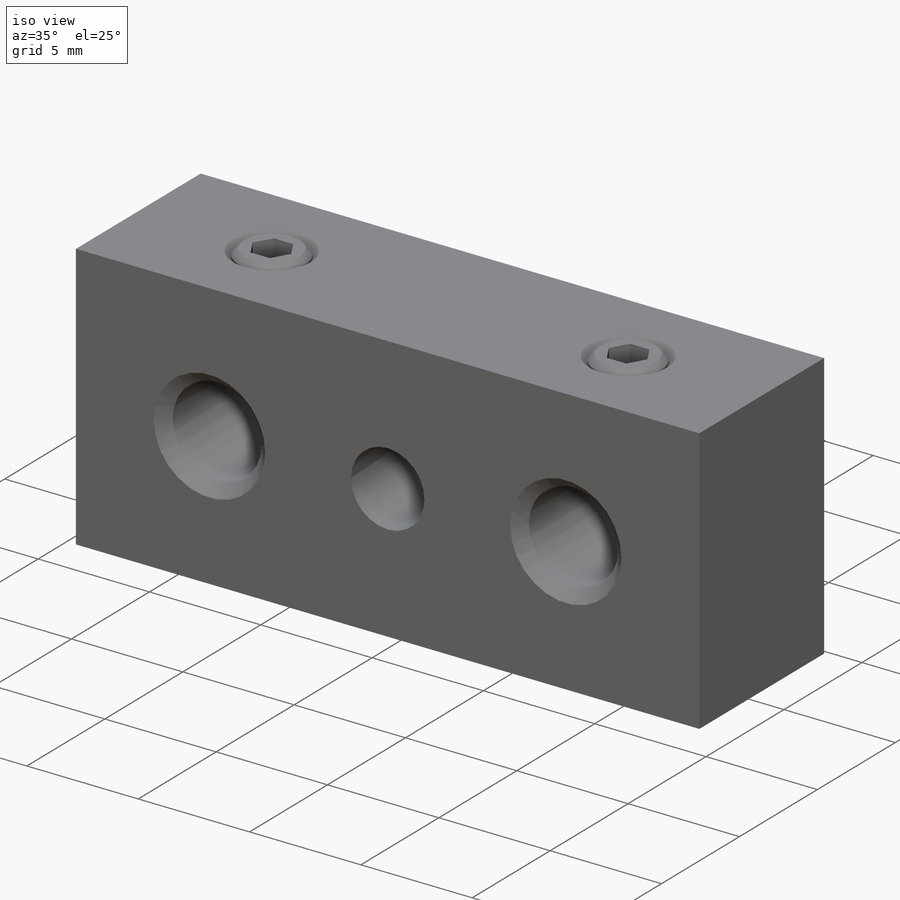
[diagram: iso view]
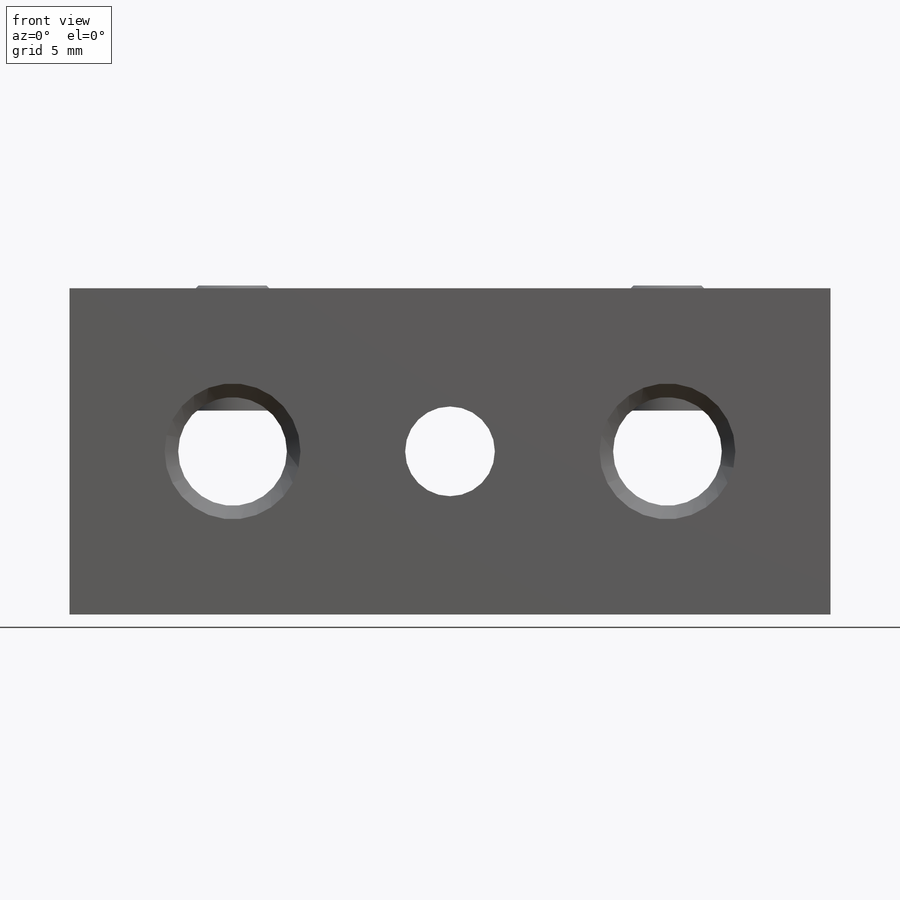
[diagram: front view]
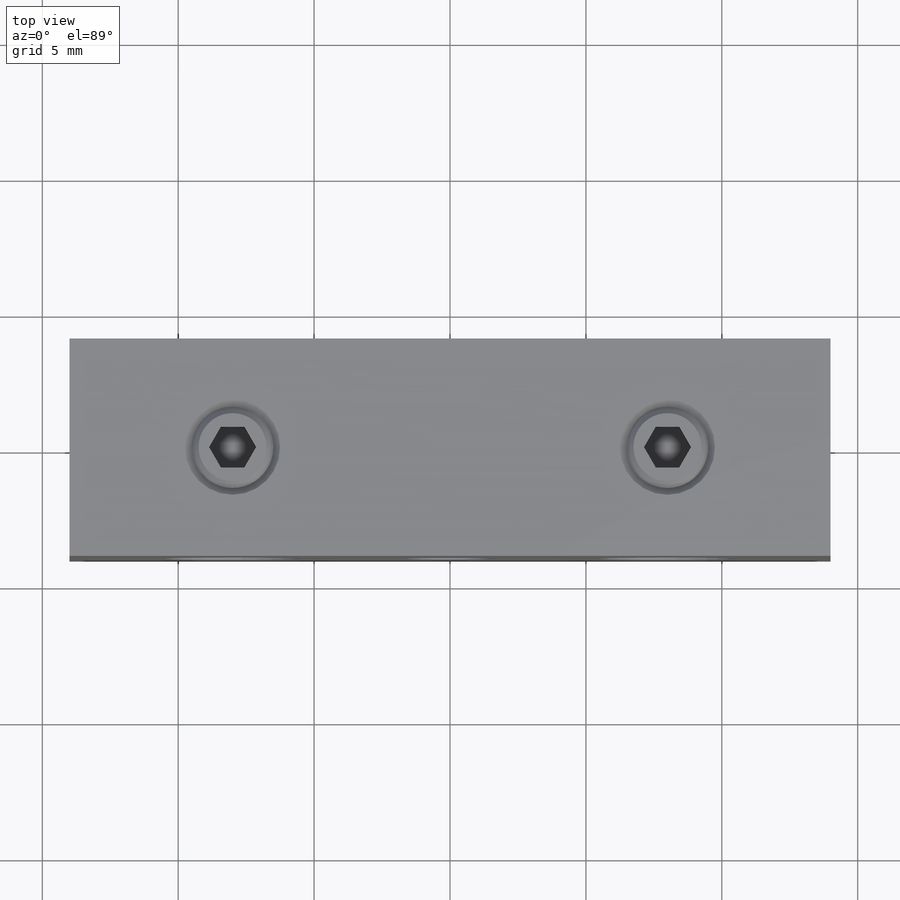
[diagram: top view]
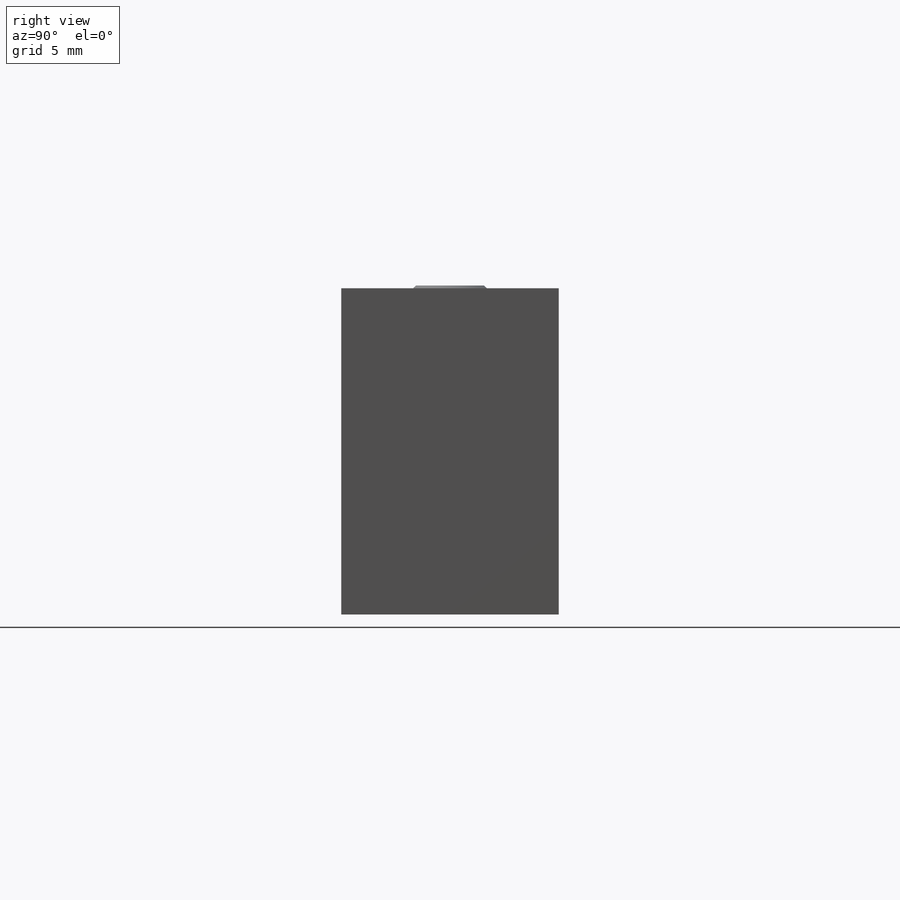
[diagram: right view]
SOLIDWORKS PART (.sldprt)
format: sldprt  version: not decoded by parser v0  size: 369,152 bytes
history: native  units: mm
features: sketch x6, material x4, cut_extrude x4, extrude x2, chamfer x2, thread x1, plane x1, mirror x1, boolean_combine x1 + 2 further entries (+12 scaffold rows collapsed)
feature tree (36):
  scaffold x12  (default folders/planes/origin — collapsed)
  material  "1060 Alloy"
  material  "Plain Carbon Steel"
  material  "1060 Alloy"
  material  "Material <not specified>"
  "Cut-List-Item2"
  "Cut-List-Item3"
  sketch  "Sketch1"  dims[D1=12.0mm D2=28.0mm]
  extrude  "Boss-Extrude1"  Depth=8mm
  sketch  "Sketch2"  dims[D2=4.0mm D1=16.0mm]
  cut_extrude  "Cut-Extrude1"  [1 undecoded]
  sketch  "Sketch3"  dims[D1=3.3mm]
  cut_extrude  "Cut-Extrude2"  [1 undecoded]
  thread  "Cosmetic Thread1"  Diameter=4mm  [1 undecoded]
  sketch  "Sketch4"  dims[D2=2.5mm D1=16.0mm]
  cut_extrude  "Cut-Extrude3"  [1 undecoded]
  plane  "Plane1"  Offset=1.5mm
  sketch  "Sketch5"  dims[D1=3.0mm]
  extrude  "Boss-Extrude2"  Depth=4.6mm
  chamfer  "Chamfer1"  Distance=0.25mm Angle=45deg
  chamfer  "Chamfer2"  Distance=0.5mm Angle=45deg
  sketch  "Sketch6"  dims[D1=1.5mm]
  cut_extrude  "Cut-Extrude4"  Depth=2mm
  mirror  "Mirror1"
  boolean_combine  "Combine1"
decode coverage: 12 of 17 modeling features carry decoded parameters; 2 rows unclassified (native names shown)
note: 4 parameter values undecoded
summary: no parameter record found for 3 features
note: suppression state not decoded; provenance and decode notes live in map.json
